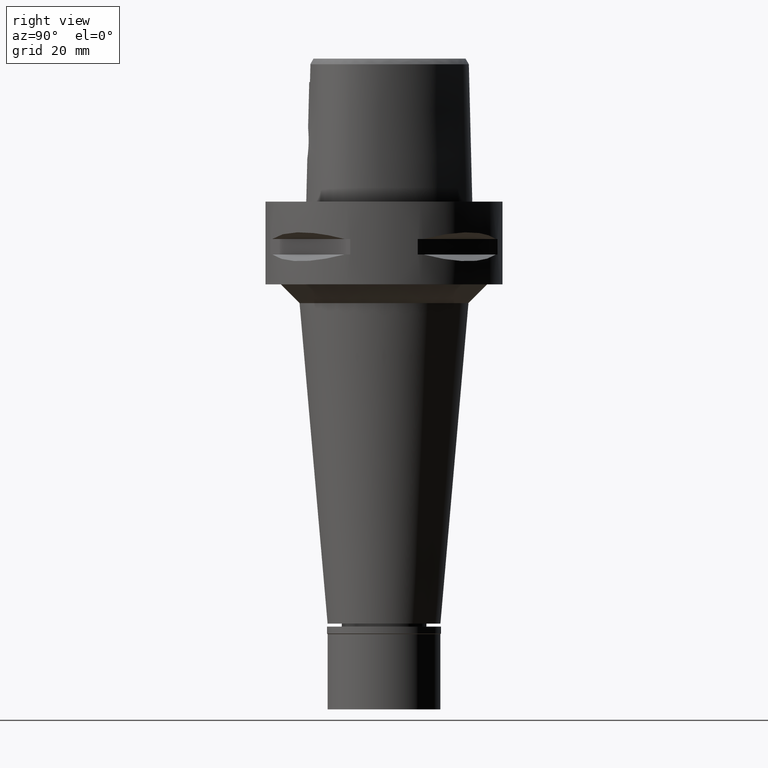
[diagram: clean part render]
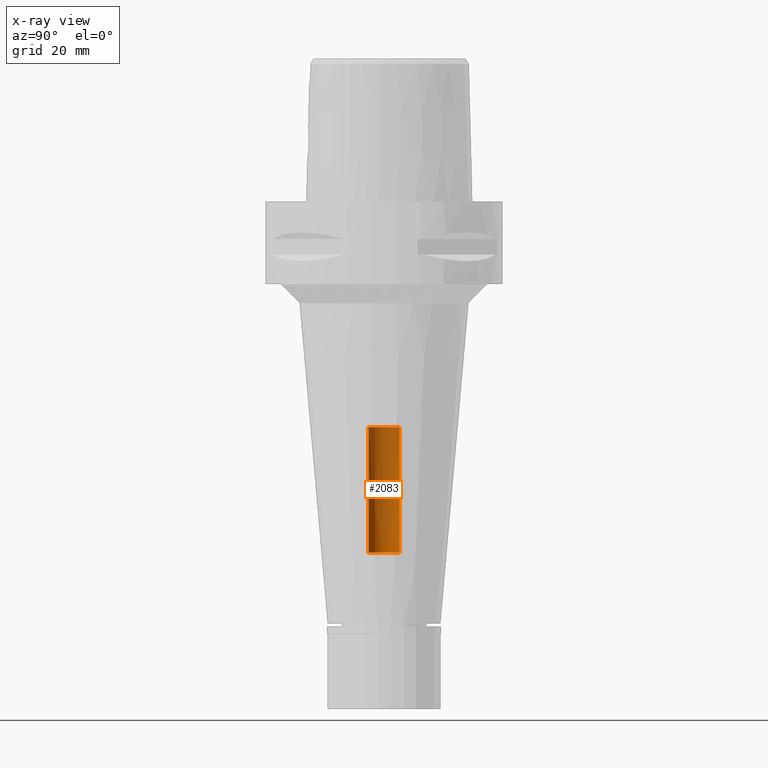
[diagram: x-ray — body ghosted, one internal face saturated and labeled with its STEP entity id]
A machine part, right view, then the same camera in x-ray: the body is ghosted and one INTERNAL B-rep face — a face not visible from any outside direction — is saturated and labeled: STEP entity #2083.
In plain terms, the highlighted cylindrical surface (edge-blend (fillet) strip) has radius 4.2 mm, axis along (0, 0, -1).
Its self-contained STEP definition (entity closure, byte-faithful):
#74 = ORIENTED_EDGE ( 'NONE', *, *, #3609, .F. ) ;
#294 = EDGE_CURVE ( 'NONE', #1463, #1174, #490, .T. ) ;
#402 = CARTESIAN_POINT ( 'NONE',  ( 0.0000000000000000000, 4.200000000000000178, -60.00000000000000000 ) ) ;
#474 = DIRECTION ( 'NONE',  ( 0.0000000000000000000, 0.0000000000000000000, -1.000000000000000000 ) ) ;
#490 = CIRCLE ( 'NONE', #4022, 4.200000000000000178 ) ;
#661 = AXIS2_PLACEMENT_3D ( 'NONE', #3812, #4616, #4644 ) ;
#947 = CARTESIAN_POINT ( 'NONE',  ( 0.0000000000000000000, 0.0000000000000000000, -93.29999999999999716 ) ) ;
#1141 = DIRECTION ( 'NONE',  ( 0.0000000000000000000, 0.0000000000000000000, 1.000000000000000000 ) ) ;
#1147 = CARTESIAN_POINT ( 'NONE',  ( 0.0000000000000000000, -4.200000000000000178, -93.29999999999999716 ) ) ;
#1174 = VERTEX_POINT ( 'NONE', #3814 ) ;
#1194 = EDGE_CURVE ( 'NONE', #1174, #2196, #3066, .T. ) ;
#1463 = VERTEX_POINT ( 'NONE', #1147 ) ;
#1571 = DIRECTION ( 'NONE',  ( 0.0000000000000000000, 0.0000000000000000000, 1.000000000000000000 ) ) ;
#1738 = CIRCLE ( 'NONE', #2221, 4.200000000000000178 ) ;
#2083 = ADVANCED_FACE ( 'NONE', ( #3040 ), #5054, .F. ) ;
#2196 = VERTEX_POINT ( 'NONE', #402 ) ;
#2221 = AXIS2_PLACEMENT_3D ( 'NONE', #2415, #1571, #3216 ) ;
#2225 = LINE ( 'NONE', #3399, #3251 ) ;
#2332 = ORIENTED_EDGE ( 'NONE', *, *, #294, .T. ) ;
#2415 = CARTESIAN_POINT ( 'NONE',  ( 0.0000000000000000000, 0.0000000000000000000, -60.00000000000000000 ) ) ;
#2670 = DIRECTION ( 'NONE',  ( 0.0000000000000000000, 0.0000000000000000000, 1.000000000000000000 ) ) ;
#2677 = VERTEX_POINT ( 'NONE', #3938 ) ;
#2727 = EDGE_CURVE ( 'NONE', #2196, #2677, #1738, .T. ) ;
#2825 = ORIENTED_EDGE ( 'NONE', *, *, #2727, .T. ) ;
#2932 = VECTOR ( 'NONE', #1141, 1000.000000000000000 ) ;
#3040 = FACE_OUTER_BOUND ( 'NONE', #3737, .T. ) ;
#3066 = LINE ( 'NONE', #4647, #2932 ) ;
#3216 = DIRECTION ( 'NONE',  ( 0.0000000000000000000, 1.000000000000000000, 0.0000000000000000000 ) ) ;
#3251 = VECTOR ( 'NONE', #2670, 1000.000000000000000 ) ;
#3399 = CARTESIAN_POINT ( 'NONE',  ( 0.0000000000000000000, -4.200000000000000178, -93.29999999999999716 ) ) ;
#3609 = EDGE_CURVE ( 'NONE', #1463, #2677, #2225, .T. ) ;
#3649 = DIRECTION ( 'NONE',  ( 0.0000000000000000000, -1.000000000000000000, 0.0000000000000000000 ) ) ;
#3737 = EDGE_LOOP ( 'NONE', ( #2825, #74, #2332, #5034 ) ) ;
#3812 = CARTESIAN_POINT ( 'NONE',  ( 0.0000000000000000000, 0.0000000000000000000, 6.415000000000000036 ) ) ;
#3814 = CARTESIAN_POINT ( 'NONE',  ( 0.0000000000000000000, 4.200000000000000178, -93.29999999999999716 ) ) ;
#3938 = CARTESIAN_POINT ( 'NONE',  ( 0.0000000000000000000, -4.200000000000000178, -60.00000000000000000 ) ) ;
#4022 = AXIS2_PLACEMENT_3D ( 'NONE', #947, #474, #3649 ) ;
#4616 = DIRECTION ( 'NONE',  ( 0.0000000000000000000, 0.0000000000000000000, -1.000000000000000000 ) ) ;
#4644 = DIRECTION ( 'NONE',  ( 0.0000000000000000000, -1.000000000000000000, 0.0000000000000000000 ) ) ;
#4647 = CARTESIAN_POINT ( 'NONE',  ( 0.0000000000000000000, 4.200000000000000178, -93.29999999999999716 ) ) ;
#5034 = ORIENTED_EDGE ( 'NONE', *, *, #1194, .T. ) ;
#5054 = CYLINDRICAL_SURFACE ( 'NONE', #661, 4.200000000000000178 ) ;